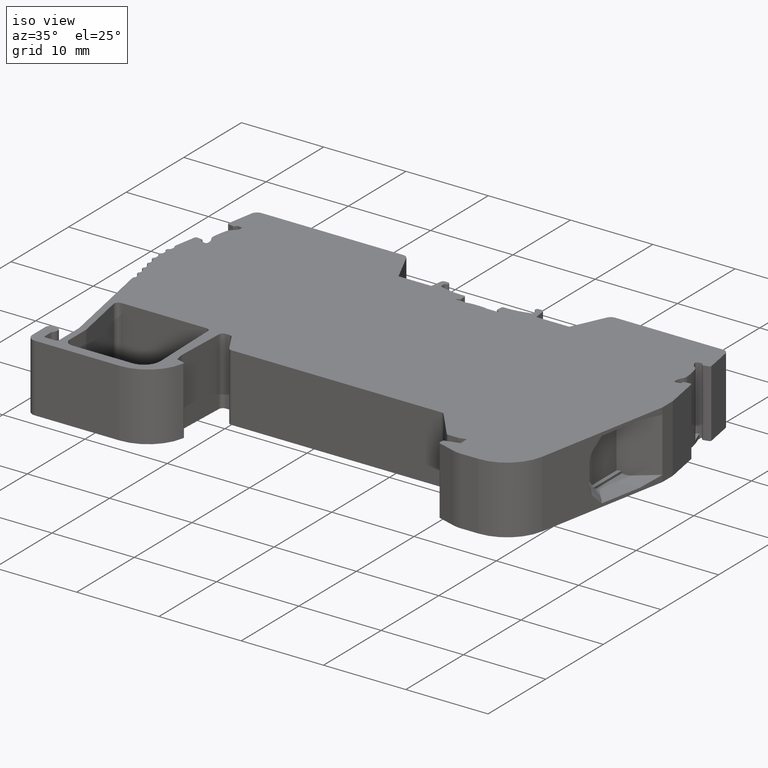
[diagram: clean part render]
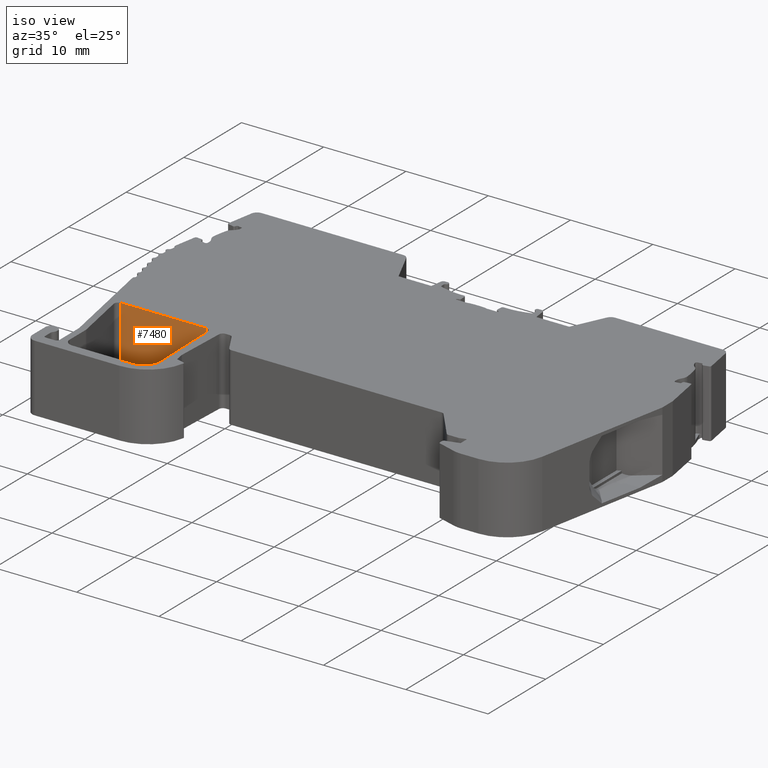
[diagram: same view with one face highlighted and labeled with its STEP entity id]
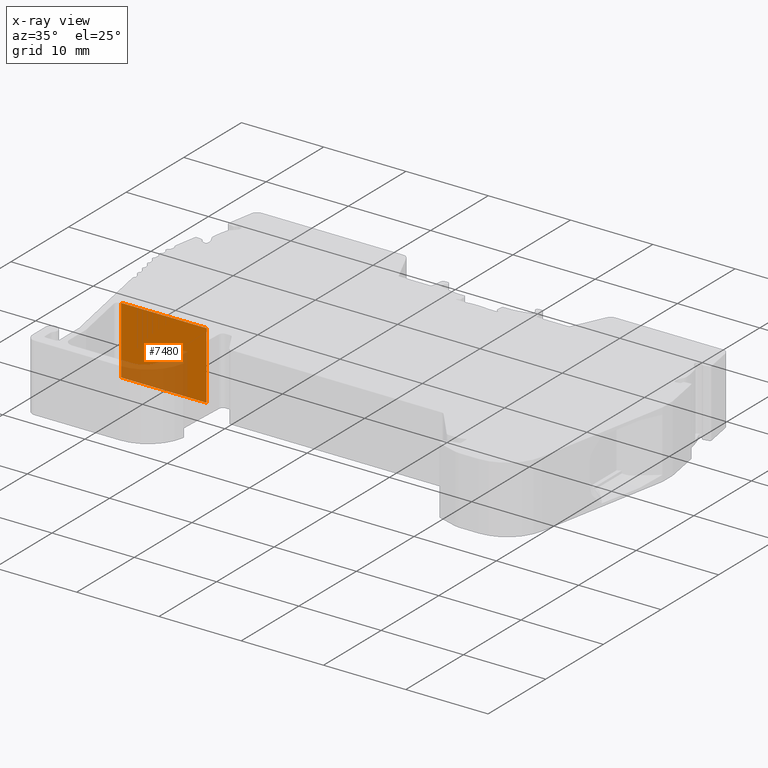
[diagram: x-ray of the same camera — body ghosted, the highlighted face saturated]
A machine part, iso view. The second image highlights one B-rep face of the part: STEP entity #7480.
The next image is the same camera in x-ray: the body ghosted, the highlighted face saturated — about 29% of this face is hidden behind the body in this view.
In plain terms, the highlighted planar face has unit normal (0, -1, 0).
Its self-contained STEP definition (entity closure, byte-faithful):
#1284 = EDGE_CURVE ( 'NONE', #4552, #10581, #3518, .T. ) ;
#1671 = EDGE_CURVE ( 'NONE', #7022, #3619, #8931, .T. ) ;
#2112 = FACE_OUTER_BOUND ( 'NONE', #2499, .T. ) ;
#2193 = AXIS2_PLACEMENT_3D ( 'NONE', #9591, #8736, #6866 ) ;
#2499 = EDGE_LOOP ( 'NONE', ( #11051, #11844, #7715, #9130 ) ) ;
#2969 = VECTOR ( 'NONE', #4806, 1000.000000000000000 ) ;
#3004 = LINE ( 'NONE', #9211, #2969 ) ;
#3286 = DIRECTION ( 'NONE',  ( 1.000000000000000000, 0.0000000000000000000, 0.0000000000000000000 ) ) ;
#3518 = LINE ( 'NONE', #3696, #5633 ) ;
#3581 = VECTOR ( 'NONE', #10986, 1000.000000000000000 ) ;
#3619 = VERTEX_POINT ( 'NONE', #9837 ) ;
#3696 = CARTESIAN_POINT ( 'NONE',  ( -204.0136934245634848, 72.01617807536538862, -9.599999999999999645 ) ) ;
#4552 = VERTEX_POINT ( 'NONE', #8936 ) ;
#4806 = DIRECTION ( 'NONE',  ( 1.000000000000000000, 0.0000000000000000000, 0.0000000000000000000 ) ) ;
#4944 = PLANE ( 'NONE',  #2193 ) ;
#5194 = EDGE_CURVE ( 'NONE', #10581, #3619, #5943, .T. ) ;
#5633 = VECTOR ( 'NONE', #9131, 1000.000000000000000 ) ;
#5943 = LINE ( 'NONE', #7824, #8433 ) ;
#6866 = DIRECTION ( 'NONE',  ( 0.0000000000000000000, 0.0000000000000000000, -1.000000000000000000 ) ) ;
#7022 = VERTEX_POINT ( 'NONE', #8346 ) ;
#7480 = ADVANCED_FACE ( 'NONE', ( #2112 ), #4944, .T. ) ;
#7715 = ORIENTED_EDGE ( 'NONE', *, *, #5194, .F. ) ;
#7824 = CARTESIAN_POINT ( 'NONE',  ( 0.0000000000000000000, 72.01617807536538862, 8.200000000000001066 ) ) ;
#7881 = EDGE_CURVE ( 'NONE', #4552, #7022, #3004, .T. ) ;
#8028 = CARTESIAN_POINT ( 'NONE',  ( -193.6359311294139900, 72.01617807536538862, -9.599999999999999645 ) ) ;
#8346 = CARTESIAN_POINT ( 'NONE',  ( -193.6359311294139900, 72.01617807536538862, 0.0000000000000000000 ) ) ;
#8433 = VECTOR ( 'NONE', #3286, 1000.000000000000000 ) ;
#8736 = DIRECTION ( 'NONE',  ( 0.0000000000000000000, -1.000000000000000000, 0.0000000000000000000 ) ) ;
#8931 = LINE ( 'NONE', #8028, #3581 ) ;
#8936 = CARTESIAN_POINT ( 'NONE',  ( -204.0136934245634848, 72.01617807536538862, 0.0000000000000000000 ) ) ;
#9130 = ORIENTED_EDGE ( 'NONE', *, *, #1284, .F. ) ;
#9131 = DIRECTION ( 'NONE',  ( 0.0000000000000000000, 0.0000000000000000000, 1.000000000000000000 ) ) ;
#9211 = CARTESIAN_POINT ( 'NONE',  ( 0.0000000000000000000, 72.01617807536538862, 0.0000000000000000000 ) ) ;
#9591 = CARTESIAN_POINT ( 'NONE',  ( 0.0000000000000000000, 72.01617807536538862, -9.599999999999999645 ) ) ;
#9837 = CARTESIAN_POINT ( 'NONE',  ( -193.6359311294139900, 72.01617807536538862, 8.200000000000001066 ) ) ;
#10581 = VERTEX_POINT ( 'NONE', #11007 ) ;
#10986 = DIRECTION ( 'NONE',  ( 0.0000000000000000000, 0.0000000000000000000, 1.000000000000000000 ) ) ;
#11007 = CARTESIAN_POINT ( 'NONE',  ( -204.0136934245634848, 72.01617807536538862, 8.200000000000001066 ) ) ;
#11051 = ORIENTED_EDGE ( 'NONE', *, *, #7881, .T. ) ;
#11844 = ORIENTED_EDGE ( 'NONE', *, *, #1671, .T. ) ;